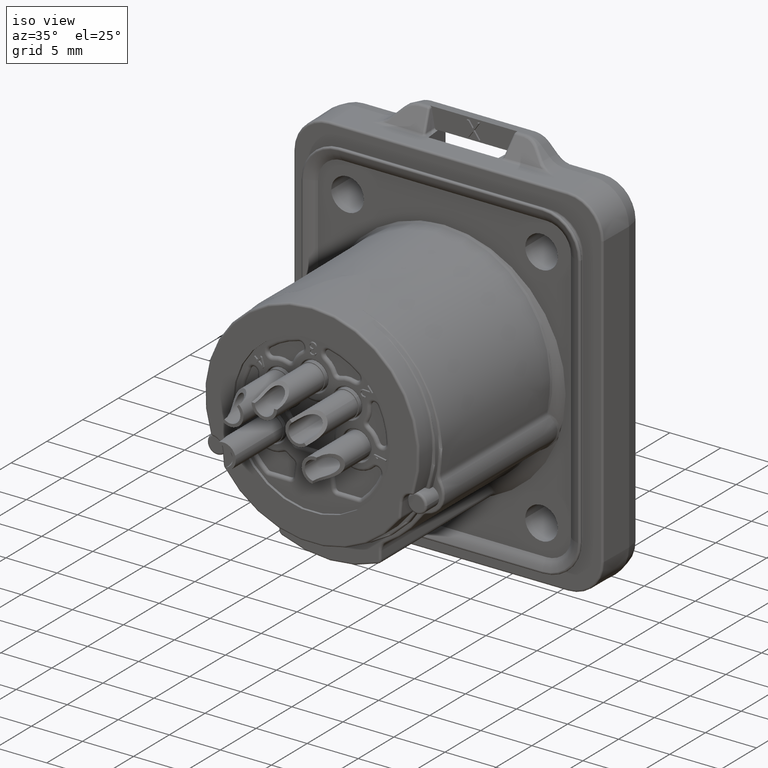
[diagram: clean part render]
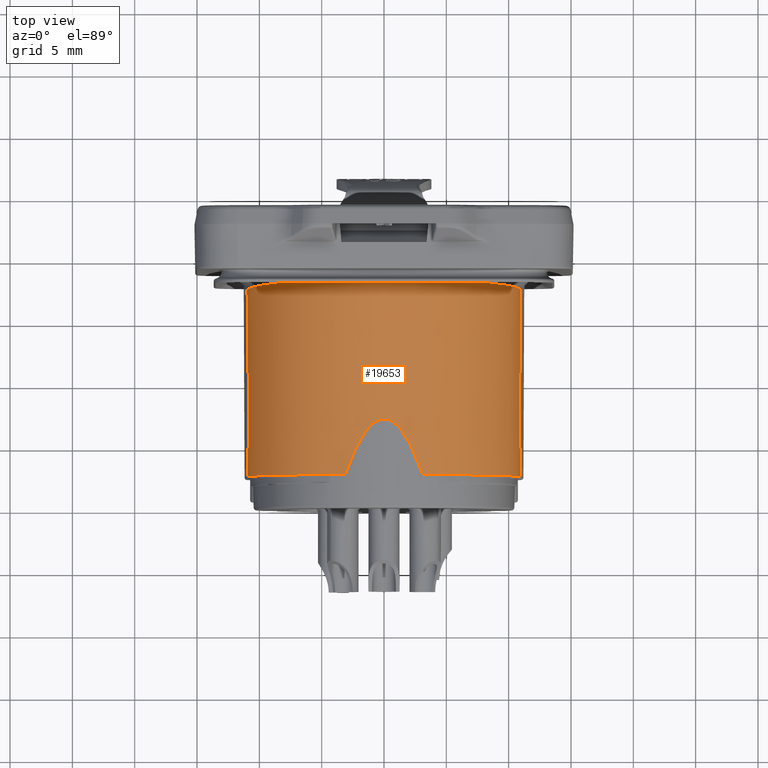
[diagram: tour spotlight — one face highlighted and labeled with its STEP entity id]
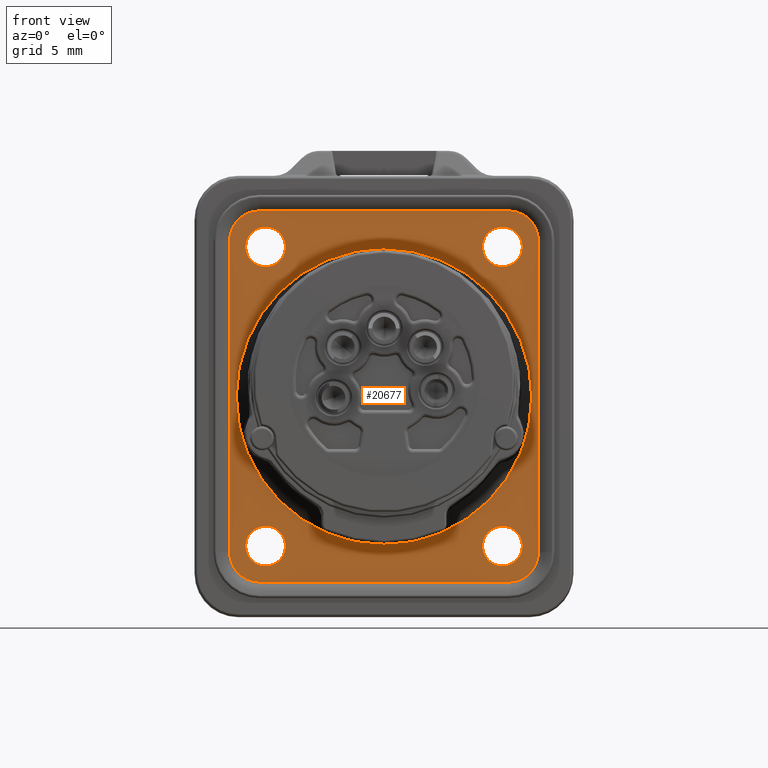
[diagram: tour spotlight — one face highlighted and labeled with its STEP entity id]
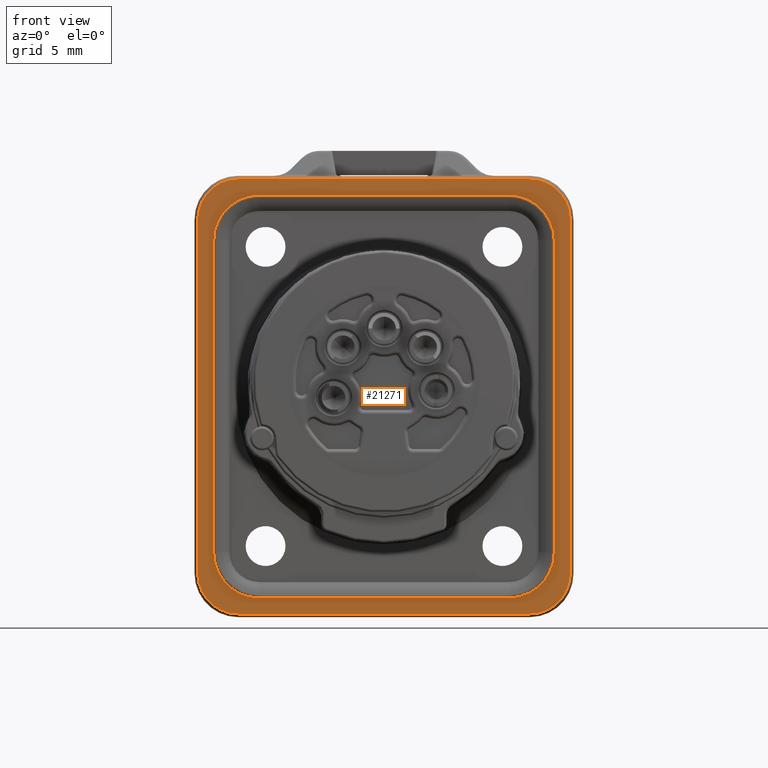
[diagram: tour spotlight — one face highlighted and labeled with its STEP entity id]
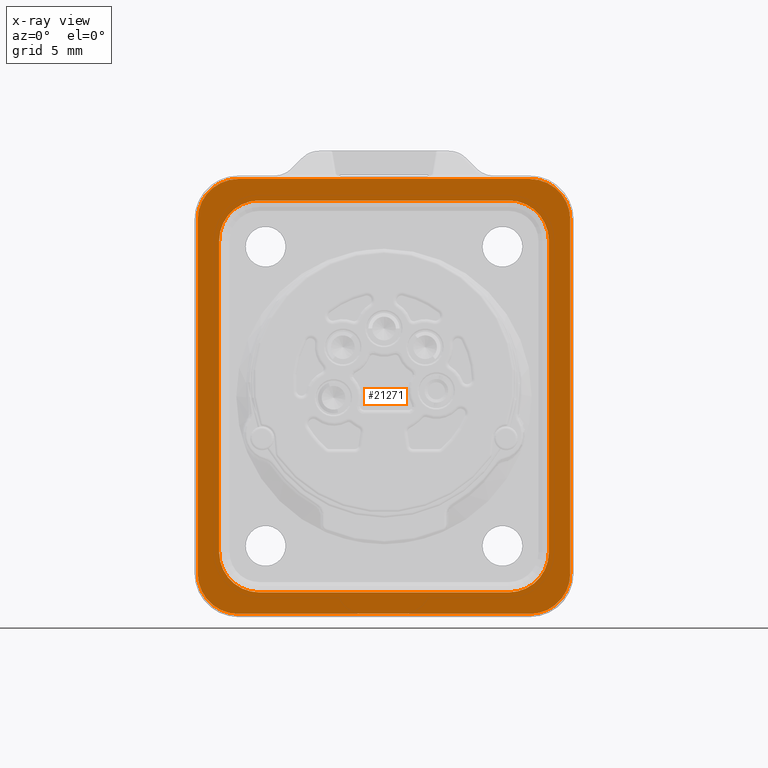
[diagram: x-ray of the same camera — body ghosted, this tour face saturated]
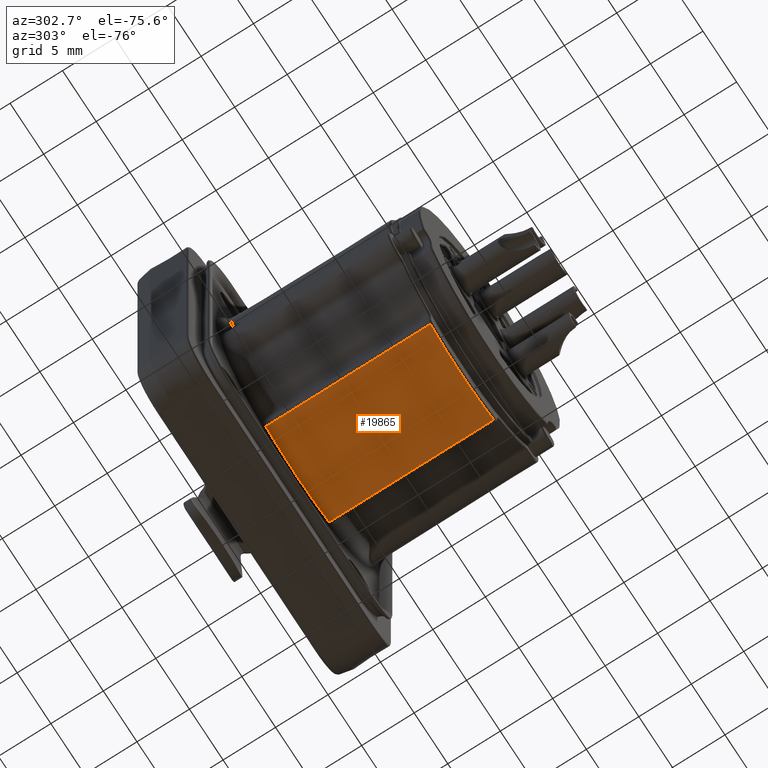
[diagram: tour spotlight — one face highlighted and labeled with its STEP entity id]
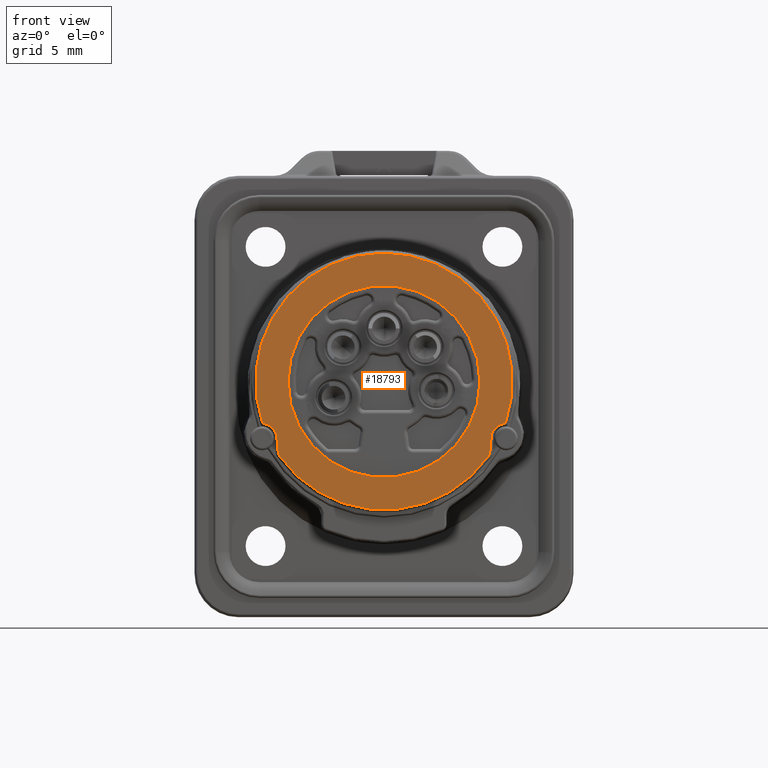
[diagram: tour spotlight — one face highlighted and labeled with its STEP entity id]
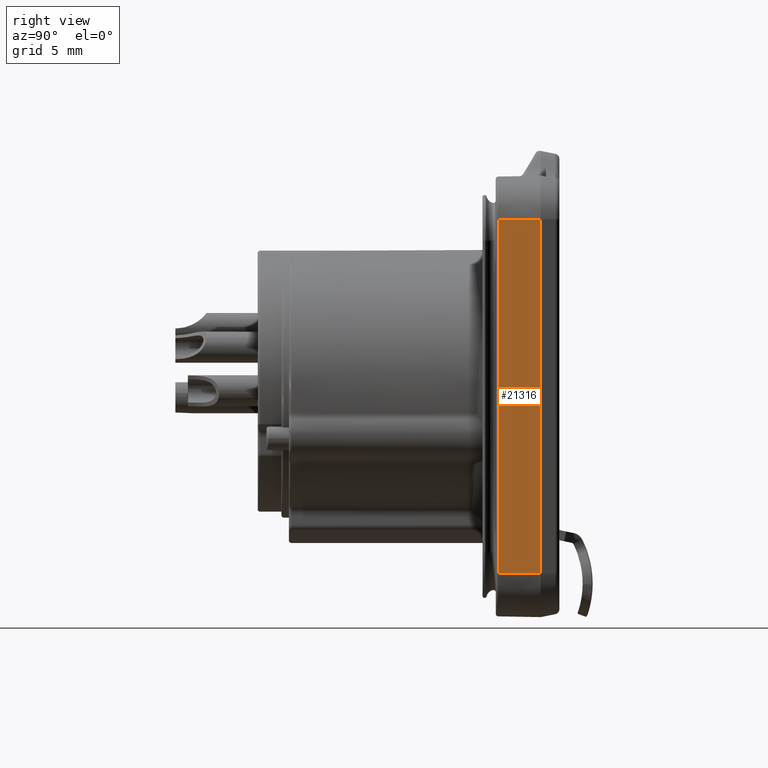
[diagram: tour spotlight — one face highlighted and labeled with its STEP entity id]
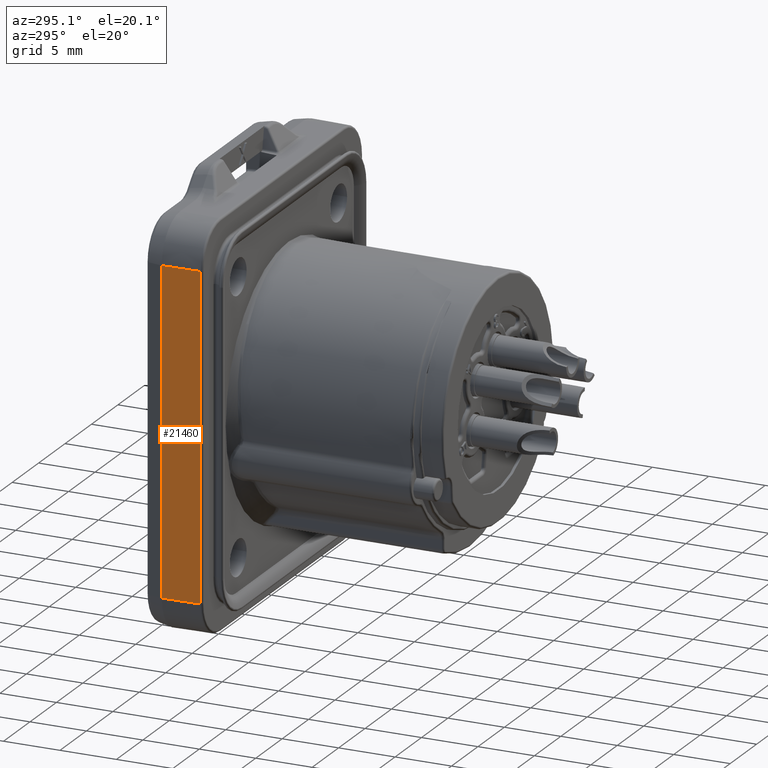
[diagram: tour spotlight — one face highlighted and labeled with its STEP entity id]
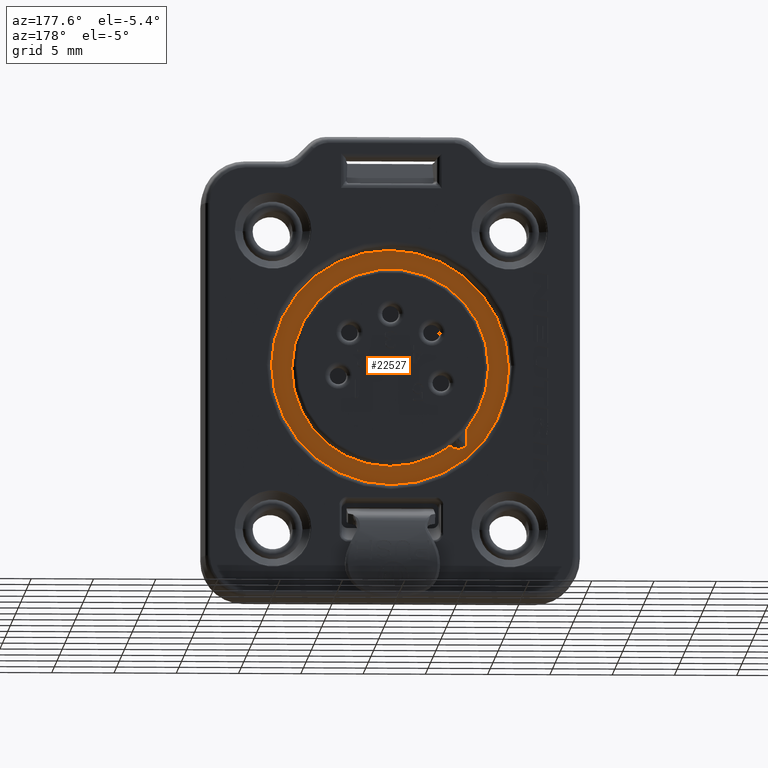
[diagram: tour spotlight — one face highlighted and labeled with its STEP entity id]
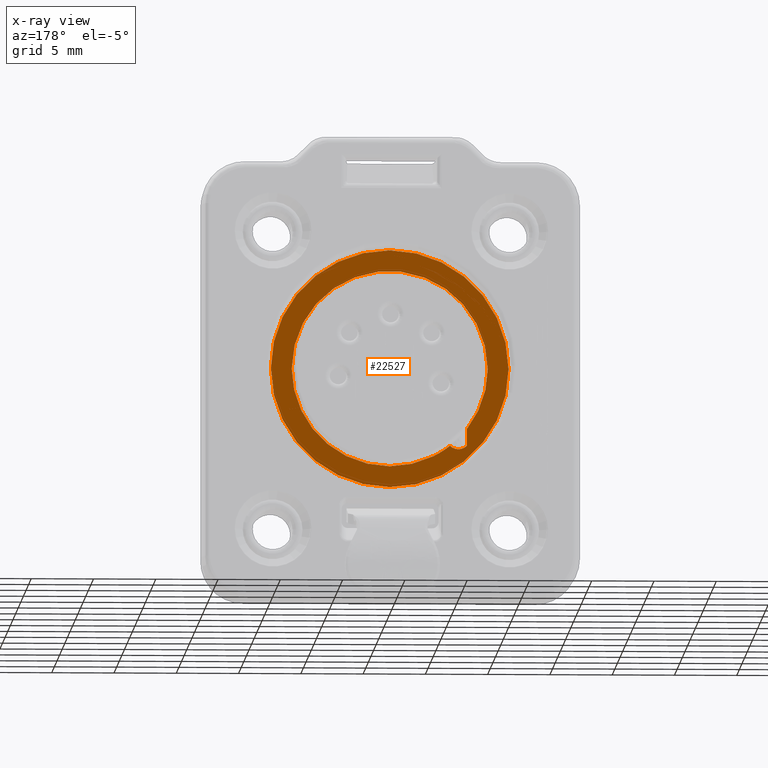
[diagram: x-ray of the same camera — body ghosted, this tour face saturated]
A machine part: a face-by-face anatomy tour. The part has 1106 B-rep faces; the first image is the clean iso view, then the 8 largest visible faces are spotlighted one at a time (largest first), each with its STEP entity span.

Face 1 — top view, entity #19653. In plain terms, the highlighted conical surface has half-angle 0.25 deg.
Definition (entity closure, byte-faithful):
#1408=CARTESIAN_POINT('',(3.109322632789E0,-1.740087266186E1,1.122906340419E1));
#1409=CARTESIAN_POINT('',(3.006096462832E0,-1.709883813768E1,1.126106673826E1));
#1410=CARTESIAN_POINT('',(2.800689039590E0,-1.653114064896E1,1.132123016023E1));
#1411=CARTESIAN_POINT('',(2.500639886435E0,-1.579361036088E1,1.139941413073E1));
#1412=CARTESIAN_POINT('',(2.204572967325E0,-1.515215112444E1,1.146742953416E1));
#1413=CARTESIAN_POINT('',(1.911065376186E0,-1.459934495241E1,1.152605566065E1));
#1414=CARTESIAN_POINT('',(1.617456022453E0,-1.412750851117E1,1.157610147336E1));
#1415=CARTESIAN_POINT('',(1.320655792113E0,-1.373182940253E1,1.161807272266E1));
#1416=CARTESIAN_POINT('',(1.018662896144E0,-1.341239828671E1,1.165195582508E1));
#1417=CARTESIAN_POINT('',(7.136365906669E-1,-1.317418386734E1,
1.167722035574E1));
#1418=CARTESIAN_POINT('',(4.106199448235E-1,-1.302203316036E1,
1.169334962407E1));
#1419=CARTESIAN_POINT('',(1.276350790094E-1,-1.295539792809E1,
1.170040162217E1));
#1420=CARTESIAN_POINT('',(-1.412635132207E-1,-1.295693667451E1,
1.170021640914E1));
#1421=CARTESIAN_POINT('',(-4.221121034239E-1,-1.302592283472E1,
1.169286902652E1));
#1422=CARTESIAN_POINT('',(-7.224711783238E-1,-1.317901618424E1,
1.167659071311E1));
#1423=CARTESIAN_POINT('',(-1.025301051652E0,-1.341712594172E1,
1.165128798522E1));
#1424=CARTESIAN_POINT('',(-1.325569157353E0,-1.373581972207E1,
1.161743430677E1));
#1425=CARTESIAN_POINT('',(-1.621067722593E0,-1.413044392848E1,
1.157552698258E1));
#1426=CARTESIAN_POINT('',(-1.913702002547E0,-1.460109104019E1,
1.152555981919E1));
#1427=CARTESIAN_POINT('',(-2.206603985481E0,-1.515293074480E1,
1.146698863984E1));
#1428=CARTESIAN_POINT('',(-2.502301107891E0,-1.579364566817E1,
1.139900414150E1));
#1429=CARTESIAN_POINT('',(-2.802211810146E0,-1.653082581499E1,
1.132080857244E1));
#1430=CARTESIAN_POINT('',(-3.007673940459E0,-1.709867296844E1,
1.126059591184E1));
#1431=CARTESIAN_POINT('',(-3.110951358520E0,-1.740087266186E1,
1.122855830341E1));
#2086=CARTESIAN_POINT('',(3.654105111532E-5,-1.740087266186E1,
7.499999991098E-1));
#2087=DIRECTION('',(0.E0,-1.E0,0.E0));
#2088=DIRECTION('',(-2.846122368719E-1,0.E0,9.586427252229E-1));
#2089=AXIS2_PLACEMENT_3D('',#2086,#2087,#2088);
#2091=CARTESIAN_POINT('',(-1.075103653724E1,-1.740087266013E1,
-1.223032568576E0));
#2092=CARTESIAN_POINT('',(-1.075852498013E1,-1.576093955951E1,
-1.221870082708E0));
#2093=CARTESIAN_POINT('',(-1.077351725326E1,-1.247705615352E1,
-1.219548907446E0));
#2094=CARTESIAN_POINT('',(-1.079605187832E1,-7.539182164622E0,
-1.216078374955E0));
#2095=CARTESIAN_POINT('',(-1.081110584149E1,-4.239228096859E0,
-1.213772057347E0));
#2096=CARTESIAN_POINT('',(-1.081864055079E1,-2.587242001913E0,
-1.212620719677E0));
#2098=CARTESIAN_POINT('',(-1.081864055079E1,-2.587242001913E0,
-1.212620719677E0));
#2099=CARTESIAN_POINT('',(-1.089038476395E1,-2.559926021081E0,
-8.177863808075E-1));
#2100=CARTESIAN_POINT('',(-1.099062148467E1,-2.504950720716E0,
-2.023882199320E-2));
#2101=CARTESIAN_POINT('',(-1.100932282858E1,-2.422442227715E0,
1.185602656117E0));
#2102=CARTESIAN_POINT('',(-1.089613245067E1,-2.340888834860E0,
2.386205511895E0));
#2103=CARTESIAN_POINT('',(-1.065235595220E1,-2.261221646345E0,
3.567387926011E0));
#2104=CARTESIAN_POINT('',(-1.028111928424E1,-2.184392109503E0,
4.714340776742E0));
#2105=CARTESIAN_POINT('',(-9.786875561118E0,-2.111226708067E0,
5.813738568103E0));
#2106=CARTESIAN_POINT('',(-9.175632223480E0,-2.042528991431E0,
6.852333641271E0));
#2107=CARTESIAN_POINT('',(-8.454883047499E0,-1.979039979106E0,
7.817637349806E0));
#2108=CARTESIAN_POINT('',(-7.633280374254E0,-1.921419524428E0,
8.698266538683E0));
#2109=CARTESIAN_POINT('',(-6.720660678992E0,-1.870256859022E0,
9.483812485717E0));
#2110=CARTESIAN_POINT('',(-5.727824407887E0,-1.826065501769E0,
1.016504655306E1));
#2111=CARTESIAN_POINT('',(-4.666567921351E0,-1.789290950278E0,
1.073387862114E1));
#2112=CARTESIAN_POINT('',(-3.549590981871E0,-1.760302677787E0,
1.118349994882E1));
#2113=CARTESIAN_POINT('',(-2.390254936764E0,-1.739388740797E0,
1.150854564076E1));
#2114=CARTESIAN_POINT('',(-1.202314563591E0,-1.726754914344E0,
1.170515420055E1));
#2115=CARTESIAN_POINT('',(-4.007736820448E-1,-1.723936417798E0,
1.174902128492E1));
#2116=CARTESIAN_POINT('',(9.701907820140E-7,-1.723935039799E0,
1.174902289191E1));
#2118=CARTESIAN_POINT('',(9.701907820140E-7,-1.723935039799E0,
1.174902289191E1));
#2119=CARTESIAN_POINT('',(4.002604286197E-1,-1.723934191106E0,
1.174902058526E1));
#2120=CARTESIAN_POINT('',(1.200850999885E0,-1.726741416435E0,1.170527630769E1));
#2121=CARTESIAN_POINT('',(2.387640603025E0,-1.739337274127E0,1.150910089618E1));
#2122=CARTESIAN_POINT('',(3.546167167080E0,-1.760206842330E0,1.118466283407E1));
#2123=CARTESIAN_POINT('',(4.662793721376E0,-1.789146657214E0,1.073565271908E1));
#2124=CARTESIAN_POINT('',(5.723733121531E0,-1.825866481093E0,1.016756013828E1));
#2125=CARTESIAN_POINT('',(6.716730246675E0,-1.870014128618E0,9.486892946784E0));
#2126=CARTESIAN_POINT('',(7.629754803847E0,-1.921145325370E0,8.701727018033E0));
#2127=CARTESIAN_POINT('',(8.451821511490E0,-1.978739921888E0,7.821395170458E0));
#2128=CARTESIAN_POINT('',(9.173080282768E0,-2.042208631056E0,6.856289078993E0));
#2129=CARTESIAN_POINT('',(9.784821817487E0,-2.110889444672E0,5.817862888962E0));
#2130=CARTESIAN_POINT('',(1.027966465477E1,-2.184056659980E0,4.718363402390E0));
#2131=CARTESIAN_POINT('',(1.065153459424E1,-2.260918265145E0,3.570866987515E0));
#2132=CARTESIAN_POINT('',(1.089579668836E1,-2.340618222972E0,2.389133859415E0));
#2133=CARTESIAN_POINT('',(1.100936887253E1,-2.422241580255E0,1.187468468374E0));
#2134=CARTESIAN_POINT('',(1.099078348864E1,-2.504839954351E0,
-1.970347763958E-2));
#2135=CARTESIAN_POINT('',(1.089040939076E1,-2.559887642338E0,
-8.182934938219E-1));
#2136=CARTESIAN_POINT('',(1.081852233832E1,-2.587242001882E0,
-1.213674912314E0));
#2138=CARTESIAN_POINT('',(1.075091731038E1,-1.740087266010E1,
-1.224080174444E0));
#2139=CARTESIAN_POINT('',(1.075840586651E1,-1.576093955947E1,
-1.222918418277E0));
#2140=CARTESIAN_POINT('',(1.077339836590E1,-1.247705615347E1,
-1.220598703086E0));
#2141=CARTESIAN_POINT('',(1.079593332894E1,-7.539182164555E0,
-1.217130366932E0));
#2142=CARTESIAN_POINT('',(1.081098751686E1,-4.239228096795E0,
-1.214825515774E0));
#2143=CARTESIAN_POINT('',(1.081852233832E1,-2.587242001882E0,
-1.213674912314E0));
#2145=CARTESIAN_POINT('',(3.654105111532E-5,-1.740087266186E1,
7.499999991098E-1));
#2146=DIRECTION('',(0.E0,-1.E0,0.E0));
#2147=DIRECTION('',(9.835564530870E-1,0.E0,-1.806009512460E-1));
#2148=AXIS2_PLACEMENT_3D('',#2145,#2146,#2147);
#2425=CARTESIAN_POINT('',(1.075091731038E1,-1.740087266010E1,
-1.224080174444E0));
#2456=CARTESIAN_POINT('',(-1.075103653724E1,-1.740087266013E1,
-1.223032568576E0));
#2471=CARTESIAN_POINT('',(-1.081864055079E1,-2.587242001913E0,
-1.212620719677E0));
#17400=CARTESIAN_POINT('',(9.701469295163E-7,-1.723935039799E0,
1.174902289191E1));
#17402=VERTEX_POINT('',#17400);
#17412=VERTEX_POINT('',#2471);
#17415=VERTEX_POINT('',#2136);
#17436=VERTEX_POINT('',#2425);
#17441=VERTEX_POINT('',#2456);
#17547=VERTEX_POINT('',#1408);
#17548=VERTEX_POINT('',#1431);
#19634=CARTESIAN_POINT('',(3.654105111676E-5,-9.562403850828E0,
7.499999991098E-1));
#19635=DIRECTION('',(0.E0,1.E0,0.E0));
#19636=DIRECTION('',(1.E0,0.E0,0.E0));
#19637=AXIS2_PLACEMENT_3D('',#19634,#19635,#19636);
#19638=CONICAL_SURFACE('',#19637,1.096482090354E1,2.5E-1);
#19639=ORIENTED_EDGE('',*,*,#18970,.T.);
#19641=ORIENTED_EDGE('',*,*,#19640,.T.);
#19643=ORIENTED_EDGE('',*,*,#19642,.T.);
#19645=ORIENTED_EDGE('',*,*,#19644,.T.);
#19647=ORIENTED_EDGE('',*,*,#19646,.T.);
#19649=ORIENTED_EDGE('',*,*,#19648,.F.);
#19650=ORIENTED_EDGE('',*,*,#19626,.T.);
#19651=EDGE_LOOP('',(#19639,#19641,#19643,#19645,#19647,#19649,#19650));
#19652=FACE_OUTER_BOUND('',#19651,.F.);
#19653=ADVANCED_FACE('',(#19652),#19638,.T.);
#1432=B_SPLINE_CURVE_WITH_KNOTS('',3,(#1408,#1409,#1410,#1411,#1412,#1413,#1414,
#1415,#1416,#1417,#1418,#1419,#1420,#1421,#1422,#1423,#1424,#1425,#1426,#1427,
#1428,#1429,#1430,#1431),.UNSPECIFIED.,.F.,.F.,(4,1,1,1,1,1,1,1,1,1,1,1,1,1,1,1,
1,1,1,1,1,4),(0.E0,4.761904761905E-2,9.523809523810E-2,1.428571428571E-1,
1.904761904762E-1,2.380952380952E-1,2.857142857143E-1,3.333333333333E-1,
3.809523809524E-1,4.285714285714E-1,4.761904761905E-1,5.238095238095E-1,
5.714285714286E-1,6.190476190476E-1,6.666666666667E-1,7.142857142857E-1,
7.619047619048E-1,8.095238095238E-1,8.571428571429E-1,9.047619047619E-1,
9.523809523810E-1,1.E0),.UNSPECIFIED.);
#2090=CIRCLE('',#2089,1.093061891422E1);
#2097=B_SPLINE_CURVE_WITH_KNOTS('',3,(#2091,#2092,#2093,#2094,#2095,#2096),
.UNSPECIFIED.,.F.,.F.,(4,1,1,4),(0.E0,3.333333333333E-1,6.666666666667E-1,1.E0),
.UNSPECIFIED.);
#2117=B_SPLINE_CURVE_WITH_KNOTS('',3,(#2098,#2099,#2100,#2101,#2102,#2103,#2104,
#2105,#2106,#2107,#2108,#2109,#2110,#2111,#2112,#2113,#2114,#2115,#2116),
.UNSPECIFIED.,.F.,.F.,(4,1,1,1,1,1,1,1,1,1,1,1,1,1,1,1,4),(0.E0,6.25E-2,1.25E-1,
1.875E-1,2.5E-1,3.125E-1,3.75E-1,4.375E-1,5.E-1,5.625E-1,6.25E-1,6.875E-1,
7.5E-1,8.125E-1,8.75E-1,9.375E-1,1.E0),.UNSPECIFIED.);
#2137=B_SPLINE_CURVE_WITH_KNOTS('',3,(#2118,#2119,#2120,#2121,#2122,#2123,#2124,
#2125,#2126,#2127,#2128,#2129,#2130,#2131,#2132,#2133,#2134,#2135,#2136),
.UNSPECIFIED.,.F.,.F.,(4,1,1,1,1,1,1,1,1,1,1,1,1,1,1,1,4),(0.E0,6.25E-2,1.25E-1,
1.875E-1,2.5E-1,3.125E-1,3.75E-1,4.375E-1,5.E-1,5.625E-1,6.25E-1,6.875E-1,
7.5E-1,8.125E-1,8.75E-1,9.375E-1,1.E0),.UNSPECIFIED.);
#2144=B_SPLINE_CURVE_WITH_KNOTS('',3,(#2138,#2139,#2140,#2141,#2142,#2143),
.UNSPECIFIED.,.F.,.F.,(4,1,1,4),(0.E0,3.333333333333E-1,6.666666666667E-1,1.E0),
.UNSPECIFIED.);
#2149=CIRCLE('',#2148,1.093061891422E1);
#18970=EDGE_CURVE('',#17547,#17548,#1432,.T.);
#19626=EDGE_CURVE('',#17436,#17547,#2149,.T.);
#19640=EDGE_CURVE('',#17548,#17441,#2090,.T.);
#19642=EDGE_CURVE('',#17441,#17412,#2097,.T.);
#19644=EDGE_CURVE('',#17412,#17402,#2117,.T.);
#19646=EDGE_CURVE('',#17402,#17415,#2137,.T.);
#19648=EDGE_CURVE('',#17436,#17415,#2144,.T.);

Face 2 — front view, entity #20677. In plain terms, the highlighted planar face has unit normal (0, 1, 0).
Definition (entity closure, byte-faithful):
#2656=CARTESIAN_POINT('',(9.5E0,-1.5E0,1.2E1));
#2657=DIRECTION('',(0.E0,1.E0,0.E0));
#2658=DIRECTION('',(-1.E0,0.E0,0.E0));
#2659=AXIS2_PLACEMENT_3D('',#2656,#2657,#2658);
#2661=CARTESIAN_POINT('',(-9.5E0,-1.5E0,1.2E1));
#2662=DIRECTION('',(0.E0,1.E0,0.E0));
#2663=DIRECTION('',(-1.E0,0.E0,0.E0));
#2664=AXIS2_PLACEMENT_3D('',#2661,#2662,#2663);
#2666=CARTESIAN_POINT('',(-9.5E0,-1.5E0,-1.2E1));
#2667=DIRECTION('',(0.E0,1.E0,0.E0));
#2668=DIRECTION('',(1.E0,0.E0,0.E0));
#2669=AXIS2_PLACEMENT_3D('',#2666,#2667,#2668);
#2671=CARTESIAN_POINT('',(9.5E0,-1.5E0,-1.2E1));
#2672=DIRECTION('',(0.E0,1.E0,0.E0));
#2673=DIRECTION('',(1.E0,0.E0,0.E0));
#2674=AXIS2_PLACEMENT_3D('',#2671,#2672,#2673);
#2676=CARTESIAN_POINT('',(0.E0,-1.5E0,0.E0));
#2677=DIRECTION('',(0.E0,-1.E0,0.E0));
#2678=DIRECTION('',(0.E0,0.E0,-1.E0));
#2679=AXIS2_PLACEMENT_3D('',#2676,#2677,#2678);
#2681=CARTESIAN_POINT('',(0.E0,-1.5E0,0.E0));
#2682=DIRECTION('',(0.E0,-1.E0,0.E0));
#2683=DIRECTION('',(0.E0,0.E0,1.E0));
#2684=AXIS2_PLACEMENT_3D('',#2681,#2682,#2683);
#2686=DIRECTION('',(0.E0,0.E0,1.E0));
#2687=VECTOR('',#2686,2.5E1);
#2688=CARTESIAN_POINT('',(1.238913613741E1,-1.5E0,-1.25E1));
#2689=LINE('',#2688,#2687);
#2690=CARTESIAN_POINT('',(1.E1,-1.5E0,1.25E1));
#2691=DIRECTION('',(0.E0,-1.E0,0.E0));
#2692=DIRECTION('',(1.E0,0.E0,0.E0));
#2693=AXIS2_PLACEMENT_3D('',#2690,#2691,#2692);
#2700=DIRECTION('',(-1.E0,0.E0,0.E0));
#2701=VECTOR('',#2700,2.E1);
#2702=CARTESIAN_POINT('',(1.E1,-1.5E0,1.488913613741E1));
#2703=LINE('',#2702,#2701);
#2709=CARTESIAN_POINT('',(-1.E1,-1.5E0,1.25E1));
#2710=DIRECTION('',(0.E0,-1.E0,0.E0));
#2711=DIRECTION('',(0.E0,0.E0,1.E0));
#2712=AXIS2_PLACEMENT_3D('',#2709,#2710,#2711);
#2719=DIRECTION('',(0.E0,0.E0,-1.E0));
#2720=VECTOR('',#2719,2.5E1);
#2721=CARTESIAN_POINT('',(-1.238913613741E1,-1.5E0,1.25E1));
#2722=LINE('',#2721,#2720);
#2728=CARTESIAN_POINT('',(-1.E1,-1.5E0,-1.25E1));
#2729=DIRECTION('',(0.E0,-1.E0,0.E0));
#2730=DIRECTION('',(-1.E0,0.E0,0.E0));
#2731=AXIS2_PLACEMENT_3D('',#2728,#2729,#2730);
#2738=DIRECTION('',(1.E0,0.E0,0.E0));
#2739=VECTOR('',#2738,2.E1);
#2740=CARTESIAN_POINT('',(-1.E1,-1.5E0,-1.488913613741E1));
#2741=LINE('',#2740,#2739);
#2747=CARTESIAN_POINT('',(1.E1,-1.5E0,-1.25E1));
#2748=DIRECTION('',(0.E0,-1.E0,0.E0));
#2749=DIRECTION('',(1.487028563661E-14,0.E0,-1.E0));
#2750=AXIS2_PLACEMENT_3D('',#2747,#2748,#2749);
#4012=CARTESIAN_POINT('',(9.5E0,-1.5E0,1.2E1));
#4013=DIRECTION('',(0.E0,1.E0,0.E0));
#4014=DIRECTION('',(1.E0,0.E0,0.E0));
#4015=AXIS2_PLACEMENT_3D('',#4012,#4013,#4014);
#4101=CARTESIAN_POINT('',(-9.5E0,-1.5E0,1.2E1));
#4102=DIRECTION('',(0.E0,1.E0,0.E0));
#4103=DIRECTION('',(1.E0,0.E0,0.E0));
#4104=AXIS2_PLACEMENT_3D('',#4101,#4102,#4103);
#4177=CARTESIAN_POINT('',(9.5E0,-1.5E0,-1.2E1));
#4178=DIRECTION('',(0.E0,1.E0,0.E0));
#4179=DIRECTION('',(-1.E0,0.E0,0.E0));
#4180=AXIS2_PLACEMENT_3D('',#4177,#4178,#4179);
#4266=CARTESIAN_POINT('',(-9.5E0,-1.5E0,-1.2E1));
#4267=DIRECTION('',(0.E0,1.E0,0.E0));
#4268=DIRECTION('',(-1.E0,0.E0,0.E0));
#4269=AXIS2_PLACEMENT_3D('',#4266,#4267,#4268);
#14959=CARTESIAN_POINT('',(-7.9E0,-1.5E0,-1.2E1));
#14960=CARTESIAN_POINT('',(-1.11E1,-1.5E0,-1.2E1));
#14961=VERTEX_POINT('',#14959);
#14962=VERTEX_POINT('',#14960);
#14963=CARTESIAN_POINT('',(1.11E1,-1.5E0,-1.2E1));
#14964=CARTESIAN_POINT('',(7.9E0,-1.5E0,-1.2E1));
#14965=VERTEX_POINT('',#14963);
#14966=VERTEX_POINT('',#14964);
#14967=CARTESIAN_POINT('',(-1.11E1,-1.5E0,1.2E1));
#14968=CARTESIAN_POINT('',(-7.9E0,-1.5E0,1.2E1));
#14969=VERTEX_POINT('',#14967);
#14970=VERTEX_POINT('',#14968);
#14971=CARTESIAN_POINT('',(7.9E0,-1.5E0,1.2E1));
#14972=CARTESIAN_POINT('',(1.11E1,-1.5E0,1.2E1));
#14973=VERTEX_POINT('',#14971);
#14974=VERTEX_POINT('',#14972);
#17338=CARTESIAN_POINT('',(1.238913613741E1,-1.5E0,-1.25E1));
#17339=CARTESIAN_POINT('',(1.238913613741E1,-1.5E0,1.25E1));
#17340=VERTEX_POINT('',#17338);
#17341=VERTEX_POINT('',#17339);
#17350=CARTESIAN_POINT('',(1.E1,-1.5E0,1.488913613741E1));
#17351=VERTEX_POINT('',#17350);
#17356=CARTESIAN_POINT('',(-1.E1,-1.5E0,1.488913613741E1));
#17357=VERTEX_POINT('',#17356);
#17362=CARTESIAN_POINT('',(-1.238913613741E1,-1.5E0,1.25E1));
#17363=VERTEX_POINT('',#17362);
#17368=CARTESIAN_POINT('',(-1.238913613741E1,-1.5E0,-1.25E1));
#17369=VERTEX_POINT('',#17368);
#17374=CARTESIAN_POINT('',(-1.E1,-1.5E0,-1.488913613741E1));
#17375=VERTEX_POINT('',#17374);
#17380=CARTESIAN_POINT('',(1.E1,-1.5E0,-1.488913613741E1));
#17381=VERTEX_POINT('',#17380);
#17523=CARTESIAN_POINT('',(0.E0,-1.5E0,-1.185E1));
#17524=CARTESIAN_POINT('',(0.E0,-1.5E0,1.185E1));
#17525=VERTEX_POINT('',#17523);
#17526=VERTEX_POINT('',#17524);
#20625=CARTESIAN_POINT('',(0.E0,-1.5E0,0.E0));
#20626=DIRECTION('',(0.E0,1.E0,0.E0));
#20627=DIRECTION('',(1.E0,0.E0,0.E0));
#20628=AXIS2_PLACEMENT_3D('',#20625,#20626,#20627);
#20629=PLANE('',#20628);
#20631=ORIENTED_EDGE('',*,*,#20630,.F.);
#20633=ORIENTED_EDGE('',*,*,#20632,.F.);
#20635=ORIENTED_EDGE('',*,*,#20634,.F.);
#20637=ORIENTED_EDGE('',*,*,#20636,.F.);
#20639=ORIENTED_EDGE('',*,*,#20638,.F.);
#20641=ORIENTED_EDGE('',*,*,#20640,.F.);
#20643=ORIENTED_EDGE('',*,*,#20642,.F.);
#20645=ORIENTED_EDGE('',*,*,#20644,.F.);
#20646=EDGE_LOOP('',(#20631,#20633,#20635,#20637,#20639,#20641,#20643,#20645));
#20647=FACE_OUTER_BOUND('',#20646,.F.);
#20649=ORIENTED_EDGE('',*,*,#20648,.F.);
#20651=ORIENTED_EDGE('',*,*,#20650,.F.);
#20652=EDGE_LOOP('',(#20649,#20651));
#20653=FACE_BOUND('',#20652,.F.);
#20655=ORIENTED_EDGE('',*,*,#20654,.F.);
#20657=ORIENTED_EDGE('',*,*,#20656,.F.);
#20658=EDGE_LOOP('',(#20655,#20657));
#20659=FACE_BOUND('',#20658,.F.);
#20661=ORIENTED_EDGE('',*,*,#20660,.F.);
#20663=ORIENTED_EDGE('',*,*,#20662,.F.);
#20664=EDGE_LOOP('',(#20661,#20663));
#20665=FACE_BOUND('',#20664,.F.);
#20667=ORIENTED_EDGE('',*,*,#20666,.F.);
#20669=ORIENTED_EDGE('',*,*,#20668,.F.);
#20670=EDGE_LOOP('',(#20667,#20669));
#20671=FACE_BOUND('',#20670,.F.);
#20672=ORIENTED_EDGE('',*,*,#20601,.T.);
#20674=ORIENTED_EDGE('',*,*,#20673,.T.);
#20675=EDGE_LOOP('',(#20672,#20674));
#20676=FACE_BOUND('',#20675,.F.);
#20677=ADVANCED_FACE('',(#20647,#20653,#20659,#20665,#20671,#20676),#20629,.F.);
#2660=CIRCLE('',#2659,1.6E0);
#2665=CIRCLE('',#2664,1.6E0);
#2670=CIRCLE('',#2669,1.6E0);
#2675=CIRCLE('',#2674,1.6E0);
#2680=CIRCLE('',#2679,1.185E1);
#2685=CIRCLE('',#2684,1.185E1);
#2694=CIRCLE('',#2693,2.389136137407E0);
#2713=CIRCLE('',#2712,2.389136137407E0);
#2732=CIRCLE('',#2731,2.389136137407E0);
#2751=CIRCLE('',#2750,2.389136137407E0);
#4016=CIRCLE('',#4015,1.6E0);
#4105=CIRCLE('',#4104,1.6E0);
#4181=CIRCLE('',#4180,1.6E0);
#4270=CIRCLE('',#4269,1.6E0);
#20601=EDGE_CURVE('',#17525,#17526,#2680,.T.);
#20630=EDGE_CURVE('',#17340,#17341,#2689,.T.);
#20632=EDGE_CURVE('',#17381,#17340,#2751,.T.);
#20634=EDGE_CURVE('',#17375,#17381,#2741,.T.);
#20636=EDGE_CURVE('',#17369,#17375,#2732,.T.);
#20638=EDGE_CURVE('',#17363,#17369,#2722,.T.);
#20640=EDGE_CURVE('',#17357,#17363,#2713,.T.);
#20642=EDGE_CURVE('',#17351,#17357,#2703,.T.);
#20644=EDGE_CURVE('',#17341,#17351,#2694,.T.);
#20648=EDGE_CURVE('',#14974,#14973,#4016,.T.);
#20650=EDGE_CURVE('',#14973,#14974,#2660,.T.);
#20654=EDGE_CURVE('',#14970,#14969,#4105,.T.);
#20656=EDGE_CURVE('',#14969,#14970,#2665,.T.);
#20660=EDGE_CURVE('',#14962,#14961,#4270,.T.);
#20662=EDGE_CURVE('',#14961,#14962,#2670,.T.);
#20666=EDGE_CURVE('',#14966,#14965,#4181,.T.);
#20668=EDGE_CURVE('',#14965,#14966,#2675,.T.);
#20673=EDGE_CURVE('',#17526,#17525,#2685,.T.);

Face 3 — front view, entity #21271. An x-ray twin of the same camera follows (body ghosted, this face saturated) — the face is partly hidden behind the body. In plain terms, the highlighted planar face has unit normal (0, -1, 0).
Definition (entity closure, byte-faithful):
#3058=CARTESIAN_POINT('',(1.17E1,-1.E0,-1.42E1));
#3059=DIRECTION('',(0.E0,1.E0,0.E0));
#3060=DIRECTION('',(1.E0,0.E0,0.E0));
#3061=AXIS2_PLACEMENT_3D('',#3058,#3059,#3060);
#3063=DIRECTION('',(-1.E0,0.E0,0.E0));
#3064=VECTOR('',#3063,2.34E1);
#3065=CARTESIAN_POINT('',(1.17E1,-1.E0,-1.744062231364E1));
#3066=LINE('',#3065,#3064);
#3067=CARTESIAN_POINT('',(-1.17E1,-1.E0,-1.42E1));
#3068=DIRECTION('',(0.E0,1.E0,0.E0));
#3069=DIRECTION('',(0.E0,0.E0,-1.E0));
#3070=AXIS2_PLACEMENT_3D('',#3067,#3068,#3069);
#3072=DIRECTION('',(0.E0,0.E0,1.E0));
#3073=VECTOR('',#3072,2.84E1);
#3074=CARTESIAN_POINT('',(-1.494062231364E1,-1.E0,-1.42E1));
#3075=LINE('',#3074,#3073);
#3076=CARTESIAN_POINT('',(-1.17E1,-1.E0,1.42E1));
#3077=DIRECTION('',(0.E0,1.E0,0.E0));
#3078=DIRECTION('',(-1.E0,0.E0,0.E0));
#3079=AXIS2_PLACEMENT_3D('',#3076,#3077,#3078);
#3081=DIRECTION('',(1.E0,0.E0,0.E0));
#3082=VECTOR('',#3081,2.34E1);
#3083=CARTESIAN_POINT('',(-1.17E1,-1.E0,1.744062231364E1));
#3084=LINE('',#3083,#3082);
#3085=CARTESIAN_POINT('',(1.17E1,-1.E0,1.42E1));
#3086=DIRECTION('',(0.E0,1.E0,0.E0));
#3087=DIRECTION('',(0.E0,0.E0,1.E0));
#3088=AXIS2_PLACEMENT_3D('',#3085,#3086,#3087);
#3090=DIRECTION('',(0.E0,0.E0,-1.E0));
#3091=VECTOR('',#3090,2.84E1);
#3092=CARTESIAN_POINT('',(1.494062231364E1,-1.E0,1.42E1));
#3093=LINE('',#3092,#3091);
#3094=DIRECTION('',(0.E0,0.E0,1.E0));
#3095=VECTOR('',#3094,2.5E1);
#3096=CARTESIAN_POINT('',(1.3223E1,-1.E0,-1.25E1));
#3097=LINE('',#3096,#3095);
#3098=CARTESIAN_POINT('',(1.E1,-1.E0,1.25E1));
#3099=DIRECTION('',(0.E0,-1.E0,0.E0));
#3100=DIRECTION('',(1.E0,0.E0,0.E0));
#3101=AXIS2_PLACEMENT_3D('',#3098,#3099,#3100);
#3103=DIRECTION('',(-1.E0,0.E0,0.E0));
#3104=VECTOR('',#3103,2.E1);
#3105=CARTESIAN_POINT('',(1.E1,-1.E0,1.5723E1));
#3106=LINE('',#3105,#3104);
#3107=CARTESIAN_POINT('',(-1.E1,-1.E0,1.25E1));
#3108=DIRECTION('',(0.E0,-1.E0,0.E0));
#3109=DIRECTION('',(0.E0,0.E0,1.E0));
#3110=AXIS2_PLACEMENT_3D('',#3107,#3108,#3109);
#3112=DIRECTION('',(0.E0,0.E0,-1.E0));
#3113=VECTOR('',#3112,2.5E1);
#3114=CARTESIAN_POINT('',(-1.3223E1,-1.E0,1.25E1));
#3115=LINE('',#3114,#3113);
#3116=CARTESIAN_POINT('',(-1.E1,-1.E0,-1.25E1));
#3117=DIRECTION('',(0.E0,-1.E0,0.E0));
#3118=DIRECTION('',(-1.E0,0.E0,0.E0));
#3119=AXIS2_PLACEMENT_3D('',#3116,#3117,#3118);
#3121=DIRECTION('',(1.E0,0.E0,0.E0));
#3122=VECTOR('',#3121,2.E1);
#3123=CARTESIAN_POINT('',(-1.E1,-1.E0,-1.5723E1));
#3124=LINE('',#3123,#3122);
#3125=CARTESIAN_POINT('',(1.E1,-1.E0,-1.25E1));
#3126=DIRECTION('',(0.E0,-1.E0,0.E0));
#3127=DIRECTION('',(0.E0,0.E0,-1.E0));
#3128=AXIS2_PLACEMENT_3D('',#3125,#3126,#3127);
#14917=CARTESIAN_POINT('',(1.494062231364E1,-1.E0,-1.42E1));
#14918=CARTESIAN_POINT('',(1.17E1,-1.E0,-1.744062231364E1));
#14919=VERTEX_POINT('',#14917);
#14920=VERTEX_POINT('',#14918);
#14923=CARTESIAN_POINT('',(-1.17E1,-1.E0,-1.744062231364E1));
#14924=VERTEX_POINT('',#14923);
#14927=CARTESIAN_POINT('',(-1.494062231364E1,-1.E0,-1.42E1));
#14928=VERTEX_POINT('',#14927);
#14931=CARTESIAN_POINT('',(-1.494062231364E1,-1.E0,1.42E1));
#14932=VERTEX_POINT('',#14931);
#14935=CARTESIAN_POINT('',(-1.17E1,-1.E0,1.744062231364E1));
#14936=VERTEX_POINT('',#14935);
#14939=CARTESIAN_POINT('',(1.17E1,-1.E0,1.744062231364E1));
#14940=VERTEX_POINT('',#14939);
#14943=CARTESIAN_POINT('',(1.494062231364E1,-1.E0,1.42E1));
#14944=VERTEX_POINT('',#14943);
#17280=CARTESIAN_POINT('',(1.3223E1,-1.E0,-1.25E1));
#17281=CARTESIAN_POINT('',(1.3223E1,-1.E0,1.25E1));
#17282=VERTEX_POINT('',#17280);
#17283=VERTEX_POINT('',#17281);
#17284=CARTESIAN_POINT('',(1.E1,-1.E0,1.5723E1));
#17285=VERTEX_POINT('',#17284);
#17286=CARTESIAN_POINT('',(-1.E1,-1.E0,1.5723E1));
#17287=VERTEX_POINT('',#17286);
#17288=CARTESIAN_POINT('',(-1.3223E1,-1.E0,1.25E1));
#17289=VERTEX_POINT('',#17288);
#17290=CARTESIAN_POINT('',(-1.3223E1,-1.E0,-1.25E1));
#17291=VERTEX_POINT('',#17290);
#17292=CARTESIAN_POINT('',(-1.E1,-1.E0,-1.5723E1));
#17293=VERTEX_POINT('',#17292);
#17294=CARTESIAN_POINT('',(1.E1,-1.E0,-1.5723E1));
#17295=VERTEX_POINT('',#17294);
#21238=CARTESIAN_POINT('',(0.E0,-1.E0,0.E0));
#21239=DIRECTION('',(0.E0,-1.E0,0.E0));
#21240=DIRECTION('',(-1.E0,0.E0,0.E0));
#21241=AXIS2_PLACEMENT_3D('',#21238,#21239,#21240);
#21242=PLANE('',#21241);
#21244=ORIENTED_EDGE('',*,*,#21243,.T.);
#21246=ORIENTED_EDGE('',*,*,#21245,.T.);
#21248=ORIENTED_EDGE('',*,*,#21247,.T.);
#21250=ORIENTED_EDGE('',*,*,#21249,.T.);
#21252=ORIENTED_EDGE('',*,*,#21251,.T.);
#21254=ORIENTED_EDGE('',*,*,#21253,.T.);
#21256=ORIENTED_EDGE('',*,*,#21255,.T.);
#21258=ORIENTED_EDGE('',*,*,#21257,.T.);
#21259=EDGE_LOOP('',(#21244,#21246,#21248,#21250,#21252,#21254,#21256,#21258));
#21260=FACE_OUTER_BOUND('',#21259,.F.);
#21261=ORIENTED_EDGE('',*,*,#21149,.T.);
#21262=ORIENTED_EDGE('',*,*,#21163,.T.);
#21263=ORIENTED_EDGE('',*,*,#21177,.T.);
#21264=ORIENTED_EDGE('',*,*,#21191,.T.);
#21265=ORIENTED_EDGE('',*,*,#21205,.T.);
#21266=ORIENTED_EDGE('',*,*,#21219,.T.);
#21267=ORIENTED_EDGE('',*,*,#21232,.T.);
#21268=ORIENTED_EDGE('',*,*,#21134,.T.);
#21269=EDGE_LOOP('',(#21261,#21262,#21263,#21264,#21265,#21266,#21267,#21268));
#21270=FACE_BOUND('',#21269,.F.);
#21271=ADVANCED_FACE('',(#21260,#21270),#21242,.T.);
#3062=CIRCLE('',#3061,3.240622313635E0);
#3071=CIRCLE('',#3070,3.240622313635E0);
#3080=CIRCLE('',#3079,3.240622313635E0);
#3089=CIRCLE('',#3088,3.240622313635E0);
#3102=CIRCLE('',#3101,3.223E0);
#3111=CIRCLE('',#3110,3.223E0);
#3120=CIRCLE('',#3119,3.223E0);
#3129=CIRCLE('',#3128,3.223E0);
#21134=EDGE_CURVE('',#17295,#17282,#3129,.T.);
#21149=EDGE_CURVE('',#17282,#17283,#3097,.T.);
#21163=EDGE_CURVE('',#17283,#17285,#3102,.T.);
#21177=EDGE_CURVE('',#17285,#17287,#3106,.T.);
#21191=EDGE_CURVE('',#17287,#17289,#3111,.T.);
#21205=EDGE_CURVE('',#17289,#17291,#3115,.T.);
#21219=EDGE_CURVE('',#17291,#17293,#3120,.T.);
#21232=EDGE_CURVE('',#17293,#17295,#3124,.T.);
#21243=EDGE_CURVE('',#14919,#14920,#3062,.T.);
#21245=EDGE_CURVE('',#14920,#14924,#3066,.T.);
#21247=EDGE_CURVE('',#14924,#14928,#3071,.T.);
#21249=EDGE_CURVE('',#14928,#14932,#3075,.T.);
#21251=EDGE_CURVE('',#14932,#14936,#3080,.T.);
#21253=EDGE_CURVE('',#14936,#14940,#3084,.T.);
#21255=EDGE_CURVE('',#14940,#14944,#3089,.T.);
#21257=EDGE_CURVE('',#14944,#14919,#3093,.T.);

Face 4 — auxiliary view, entity #19865. In plain terms, the highlighted cylindrical surface (partial cylindrical patch) has radius 11.75 mm, axis along (0, -1, 0).
Definition (entity closure, byte-faithful):
#2258=CARTESIAN_POINT('',(-4.700541084263E0,-1.724264168561E0,
-1.076881671843E1));
#2269=CARTESIAN_POINT('',(0.E0,-1.74E1,0.E0));
#2270=DIRECTION('',(0.E0,-1.E0,0.E0));
#2271=DIRECTION('',(-4.000460496721E-1,0.E0,-9.164950398893E-1));
#2272=AXIS2_PLACEMENT_3D('',#2269,#2270,#2271);
#2274=DIRECTION('',(-8.010800574072E-11,-1.E0,-3.496000759779E-11));
#2275=VECTOR('',#2274,1.567573596746E1);
#2276=CARTESIAN_POINT('',(4.699458916923E0,-1.724264032539E0,
-1.076928901498E1));
#2277=LINE('',#2276,#2275);
#2278=DIRECTION('',(-8.347782665223E-11,1.E0,3.643949920826E-11));
#2279=VECTOR('',#2278,1.567573583144E1);
#2280=CARTESIAN_POINT('',(-4.700541082955E0,-1.74E1,-1.076881671900E1));
#2281=LINE('',#2280,#2279);
#2296=CARTESIAN_POINT('',(4.699458916923E0,-1.724264032539E0,
-1.076928901498E1));
#2550=CARTESIAN_POINT('',(0.E0,-1.724264068712E0,0.E0));
#2551=DIRECTION('',(0.E0,-1.E0,0.E0));
#2552=DIRECTION('',(-4.000460496721E-1,0.E0,-9.164950398893E-1));
#2553=AXIS2_PLACEMENT_3D('',#2550,#2551,#2552);
#17455=VERTEX_POINT('',#2258);
#17464=VERTEX_POINT('',#2296);
#17469=CARTESIAN_POINT('',(-4.700541083647E0,-1.74E1,-1.076881671870E1));
#17470=VERTEX_POINT('',#17469);
#17471=CARTESIAN_POINT('',(4.699458916353E0,-1.74E1,-1.076928901523E1));
#17472=VERTEX_POINT('',#17471);
#19852=CARTESIAN_POINT('',(0.E0,8.8E-1,0.E0));
#19853=DIRECTION('',(0.E0,-1.E0,0.E0));
#19854=DIRECTION('',(-1.E0,0.E0,0.E0));
#19855=AXIS2_PLACEMENT_3D('',#19852,#19853,#19854);
#19856=CYLINDRICAL_SURFACE('',#19855,1.175E1);
#19857=ORIENTED_EDGE('',*,*,#19440,.T.);
#19859=ORIENTED_EDGE('',*,*,#19858,.F.);
#19861=ORIENTED_EDGE('',*,*,#19860,.F.);
#19862=ORIENTED_EDGE('',*,*,#19844,.F.);
#19863=EDGE_LOOP('',(#19857,#19859,#19861,#19862));
#19864=FACE_OUTER_BOUND('',#19863,.F.);
#19865=ADVANCED_FACE('',(#19864),#19856,.T.);
#2273=CIRCLE('',#2272,1.175E1);
#2554=CIRCLE('',#2553,1.175E1);
#19440=EDGE_CURVE('',#17470,#17472,#2273,.T.);
#19844=EDGE_CURVE('',#17470,#17455,#2281,.T.);
#19858=EDGE_CURVE('',#17464,#17472,#2277,.T.);
#19860=EDGE_CURVE('',#17455,#17464,#2554,.T.);

Face 5 — front view, entity #18793. In plain terms, the highlighted planar face has unit normal (0, 1, 0).
Definition (entity closure, byte-faithful):
#1145=CARTESIAN_POINT('',(0.E0,-2.01E1,1.2E0));
#1146=DIRECTION('',(0.E0,-1.E0,0.E0));
#1147=DIRECTION('',(-1.E0,0.E0,0.E0));
#1148=AXIS2_PLACEMENT_3D('',#1145,#1146,#1147);
#1150=CARTESIAN_POINT('',(0.E0,-2.01E1,1.2E0));
#1151=DIRECTION('',(0.E0,-1.E0,0.E0));
#1152=DIRECTION('',(1.E0,0.E0,0.E0));
#1153=AXIS2_PLACEMENT_3D('',#1150,#1151,#1152);
#1155=CARTESIAN_POINT('',(0.E0,-2.01E1,1.2E0));
#1156=DIRECTION('',(0.E0,1.E0,0.E0));
#1157=DIRECTION('',(8.178384019881E-1,0.E0,-5.754479544090E-1));
#1158=AXIS2_PLACEMENT_3D('',#1155,#1156,#1157);
#1160=CARTESIAN_POINT('',(-8.178178745035E0,-2.01E1,-4.554771273844E0));
#1161=DIRECTION('',(0.E0,-1.E0,0.E0));
#1162=DIRECTION('',(-9.961946980917E-1,0.E0,-8.715574274763E-2));
#1163=AXIS2_PLACEMENT_3D('',#1160,#1161,#1162);
#1165=DIRECTION('',(8.715574282549E-2,0.E0,-9.961946980849E-1));
#1166=VECTOR('',#1165,1.325549002008E0);
#1167=CARTESIAN_POINT('',(-8.592566362384E0,-2.01E1,-3.260413108816E0));
#1168=LINE('',#1167,#1166);
#1169=CARTESIAN_POINT('',(-9.788E0,-2.01E1,-3.365E0));
#1170=DIRECTION('',(0.E0,1.E0,0.E0));
#1171=DIRECTION('',(4.466574009660E-2,0.E0,9.990019878167E-1));
#1172=AXIS2_PLACEMENT_3D('',#1169,#1170,#1171);
#1174=CARTESIAN_POINT('',(9.788E0,-2.01E1,-3.365E0));
#1175=DIRECTION('',(0.E0,1.E0,0.E0));
#1176=DIRECTION('',(-9.961946980917E-1,0.E0,8.715574274766E-2));
#1177=AXIS2_PLACEMENT_3D('',#1174,#1175,#1176);
#1179=DIRECTION('',(8.715574290038E-2,0.E0,9.961946980784E-1));
#1180=VECTOR('',#1179,1.325549001999E0);
#1181=CARTESIAN_POINT('',(8.477037154462E0,-2.01E1,-4.580917996668E0));
#1182=LINE('',#1181,#1180);
#1183=CARTESIAN_POINT('',(8.178178745035E0,-2.01E1,-4.554771273844E0));
#1184=DIRECTION('',(0.E0,-1.E0,0.E0));
#1185=DIRECTION('',(8.185221290045E-1,0.E0,-5.744749988728E-1));
#1186=AXIS2_PLACEMENT_3D('',#1183,#1184,#1185);
#1611=CARTESIAN_POINT('',(0.E0,-2.01E1,1.2E0));
#1612=DIRECTION('',(0.E0,-1.E0,0.E0));
#1613=DIRECTION('',(9.450907708246E-1,0.E0,-3.268079480401E-1));
#1614=AXIS2_PLACEMENT_3D('',#1611,#1612,#1613);
#15643=CARTESIAN_POINT('',(-7.7E0,-2.01E1,1.2E0));
#15644=CARTESIAN_POINT('',(7.7E0,-2.01E1,1.2E0));
#15645=VERTEX_POINT('',#15643);
#15646=VERTEX_POINT('',#15644);
#16402=CARTESIAN_POINT('',(8.423735540477E0,-2.01E1,-4.727113930413E0));
#16403=CARTESIAN_POINT('',(-8.423575613977E0,-2.01E1,-4.727341214711E0));
#16404=VERTEX_POINT('',#16402);
#16405=VERTEX_POINT('',#16403);
#16414=CARTESIAN_POINT('',(9.734434939493E0,-2.01E1,-2.166121864813E0));
#16415=CARTESIAN_POINT('',(-9.734404918477E0,-2.01E1,-2.166208680866E0));
#16416=VERTEX_POINT('',#16414);
#16417=VERTEX_POINT('',#16415);
#16420=CARTESIAN_POINT('',(-8.592566362290E0,-2.01E1,-3.260413108703E0));
#16421=VERTEX_POINT('',#16420);
#16426=CARTESIAN_POINT('',(-8.477037154462E0,-2.01E1,-4.580917996668E0));
#16427=VERTEX_POINT('',#16426);
#16432=CARTESIAN_POINT('',(8.592566362290E0,-2.01E1,-3.260413108703E0));
#16433=VERTEX_POINT('',#16432);
#16434=CARTESIAN_POINT('',(8.477037154462E0,-2.01E1,-4.580917996668E0));
#16435=VERTEX_POINT('',#16434);
#18765=CARTESIAN_POINT('',(0.E0,-2.01E1,1.2E0));
#18766=DIRECTION('',(0.E0,1.E0,0.E0));
#18767=DIRECTION('',(-1.E0,0.E0,0.E0));
#18768=AXIS2_PLACEMENT_3D('',#18765,#18766,#18767);
#18769=PLANE('',#18768);
#18771=ORIENTED_EDGE('',*,*,#18770,.T.);
#18773=ORIENTED_EDGE('',*,*,#18772,.F.);
#18775=ORIENTED_EDGE('',*,*,#18774,.F.);
#18777=ORIENTED_EDGE('',*,*,#18776,.F.);
#18779=ORIENTED_EDGE('',*,*,#18778,.F.);
#18781=ORIENTED_EDGE('',*,*,#18780,.F.);
#18783=ORIENTED_EDGE('',*,*,#18782,.F.);
#18785=ORIENTED_EDGE('',*,*,#18784,.F.);
#18786=EDGE_LOOP('',(#18771,#18773,#18775,#18777,#18779,#18781,#18783,#18785));
#18787=FACE_OUTER_BOUND('',#18786,.F.);
#18788=ORIENTED_EDGE('',*,*,#18755,.T.);
#18790=ORIENTED_EDGE('',*,*,#18789,.T.);
#18791=EDGE_LOOP('',(#18788,#18790));
#18792=FACE_BOUND('',#18791,.F.);
#18793=ADVANCED_FACE('',(#18787,#18792),#18769,.F.);
#1149=CIRCLE('',#1148,7.7E0);
#1154=CIRCLE('',#1153,7.7E0);
#1159=CIRCLE('',#1158,1.03E1);
#1164=CIRCLE('',#1163,3.E-1);
#1173=CIRCLE('',#1172,1.2E0);
#1178=CIRCLE('',#1177,1.2E0);
#1187=CIRCLE('',#1186,3.E-1);
#1615=CIRCLE('',#1614,1.03E1);
#18755=EDGE_CURVE('',#15645,#15646,#1149,.T.);
#18770=EDGE_CURVE('',#16404,#16405,#1159,.T.);
#18772=EDGE_CURVE('',#16427,#16405,#1164,.T.);
#18774=EDGE_CURVE('',#16421,#16427,#1168,.T.);
#18776=EDGE_CURVE('',#16417,#16421,#1173,.T.);
#18778=EDGE_CURVE('',#16416,#16417,#1615,.T.);
#18780=EDGE_CURVE('',#16433,#16416,#1178,.T.);
#18782=EDGE_CURVE('',#16435,#16433,#1182,.T.);
#18784=EDGE_CURVE('',#16404,#16435,#1187,.T.);
#18789=EDGE_CURVE('',#15646,#15645,#1154,.T.);

Face 6 — right view, entity #21316. In plain terms, the highlighted planar face has unit normal (0.9998, -0.0175, 0).
Definition (entity closure, byte-faithful):
#3140=DIRECTION('',(1.745240643728E-2,9.998476951564E-1,-3.701946123055E-10));
#3141=VECTOR('',#3140,3.404008928347E0);
#3142=CARTESIAN_POINT('',(1.514059185267E1,-8.034904812994E-1,
-1.419999999874E1));
#3143=LINE('',#3142,#3141);
#3149=DIRECTION('',(0.E0,-8.566699775938E-14,-1.E0));
#3150=VECTOR('',#3149,2.839999999763E1);
#3151=CARTESIAN_POINT('',(1.514059185267E1,-8.034904812969E-1,
1.419999999889E1));
#3152=LINE('',#3151,#3150);
#3153=DIRECTION('',(1.745240643728E-2,9.998476951564E-1,3.257978101801E-10));
#3154=VECTOR('',#3153,3.404008928344E0);
#3155=CARTESIAN_POINT('',(1.514059185267E1,-8.034904812969E-1,
1.419999999889E1));
#3156=LINE('',#3155,#3154);
#3157=DIRECTION('',(0.E0,0.E0,-1.E0));
#3158=VECTOR('',#3157,2.84E1);
#3159=CARTESIAN_POINT('',(1.52E1,2.6E0,1.42E1));
#3160=LINE('',#3159,#3158);
#14357=CARTESIAN_POINT('',(1.52E1,2.6E0,1.42E1));
#14359=VERTEX_POINT('',#14357);
#14360=CARTESIAN_POINT('',(1.52E1,2.6E0,-1.42E1));
#14361=VERTEX_POINT('',#14360);
#14913=CARTESIAN_POINT('',(1.514059185267E1,-8.034904812875E-1,-1.42E1));
#14915=VERTEX_POINT('',#14913);
#14941=CARTESIAN_POINT('',(1.514059185267E1,-8.034904812875E-1,1.42E1));
#14942=VERTEX_POINT('',#14941);
#21302=CARTESIAN_POINT('',(1.52E1,2.6E0,1.622655875623E1));
#21303=DIRECTION('',(9.998476951564E-1,-1.745240643728E-2,0.E0));
#21304=DIRECTION('',(0.E0,0.E0,1.E0));
#21305=AXIS2_PLACEMENT_3D('',#21302,#21303,#21304);
#21306=PLANE('',#21305);
#21308=ORIENTED_EDGE('',*,*,#21307,.F.);
#21310=ORIENTED_EDGE('',*,*,#21309,.T.);
#21312=ORIENTED_EDGE('',*,*,#21311,.T.);
#21313=ORIENTED_EDGE('',*,*,#21293,.F.);
#21314=EDGE_LOOP('',(#21308,#21310,#21312,#21313));
#21315=FACE_OUTER_BOUND('',#21314,.F.);
#21316=ADVANCED_FACE('',(#21315),#21306,.T.);
#21293=EDGE_CURVE('',#14915,#14361,#3143,.T.);
#21307=EDGE_CURVE('',#14942,#14915,#3152,.T.);
#21309=EDGE_CURVE('',#14942,#14359,#3156,.T.);
#21311=EDGE_CURVE('',#14359,#14361,#3160,.T.);

Face 7 — auxiliary view, entity #21460. In plain terms, the highlighted planar face has unit normal (-0.9998, -0.0175, 0).
Definition (entity closure, byte-faithful):
#3306=DIRECTION('',(-1.745240643728E-2,9.998476951564E-1,3.701920030925E-10));
#3307=VECTOR('',#3306,3.404008928347E0);
#3308=CARTESIAN_POINT('',(-1.514059185267E1,-8.034904812994E-1,
1.419999999874E1));
#3309=LINE('',#3308,#3307);
#3315=DIRECTION('',(0.E0,-8.565917928738E-14,1.E0));
#3316=VECTOR('',#3315,2.839999999763E1);
#3317=CARTESIAN_POINT('',(-1.514059185267E1,-8.034904812969E-1,
-1.419999999889E1));
#3318=LINE('',#3317,#3316);
#3319=DIRECTION('',(-1.745240643728E-2,9.998476951564E-1,-3.257978101801E-10));
#3320=VECTOR('',#3319,3.404008928344E0);
#3321=CARTESIAN_POINT('',(-1.514059185267E1,-8.034904812969E-1,
-1.419999999889E1));
#3322=LINE('',#3321,#3320);
#3323=DIRECTION('',(0.E0,0.E0,1.E0));
#3324=VECTOR('',#3323,2.84E1);
#3325=CARTESIAN_POINT('',(-1.52E1,2.6E0,-1.42E1));
#3326=LINE('',#3325,#3324);
#14352=CARTESIAN_POINT('',(-1.52E1,2.6E0,1.42E1));
#14354=VERTEX_POINT('',#14352);
#14366=CARTESIAN_POINT('',(-1.52E1,2.6E0,-1.42E1));
#14367=VERTEX_POINT('',#14366);
#14925=CARTESIAN_POINT('',(-1.514059185267E1,-8.034904812875E-1,-1.42E1));
#14926=VERTEX_POINT('',#14925);
#14929=CARTESIAN_POINT('',(-1.514059185267E1,-8.034904812994E-1,
1.419999999874E1));
#14930=VERTEX_POINT('',#14929);
#21446=CARTESIAN_POINT('',(-1.52E1,2.6E0,-1.622655875623E1));
#21447=DIRECTION('',(-9.998476951564E-1,-1.745240643728E-2,0.E0));
#21448=DIRECTION('',(0.E0,0.E0,-1.E0));
#21449=AXIS2_PLACEMENT_3D('',#21446,#21447,#21448);
#21450=PLANE('',#21449);
#21452=ORIENTED_EDGE('',*,*,#21451,.F.);
#21454=ORIENTED_EDGE('',*,*,#21453,.T.);
#21456=ORIENTED_EDGE('',*,*,#21455,.T.);
#21457=ORIENTED_EDGE('',*,*,#21438,.F.);
#21458=EDGE_LOOP('',(#21452,#21454,#21456,#21457));
#21459=FACE_OUTER_BOUND('',#21458,.F.);
#21460=ADVANCED_FACE('',(#21459),#21450,.T.);
#21438=EDGE_CURVE('',#14930,#14354,#3309,.T.);
#21451=EDGE_CURVE('',#14926,#14930,#3318,.T.);
#21453=EDGE_CURVE('',#14926,#14367,#3322,.T.);
#21455=EDGE_CURVE('',#14367,#14354,#3326,.T.);

Face 8 — auxiliary view, entity #22527. An x-ray twin of the same camera follows (body ghosted, this face saturated) — the face is partly hidden behind the body. In plain terms, the highlighted planar face has unit normal (0, -1, 0).
Definition (entity closure, byte-faithful):
#4318=CARTESIAN_POINT('',(0.E0,9.E-1,1.2E0));
#4319=DIRECTION('',(0.E0,-1.E0,0.E0));
#4320=DIRECTION('',(0.E0,0.E0,-1.E0));
#4321=AXIS2_PLACEMENT_3D('',#4318,#4319,#4320);
#4323=CARTESIAN_POINT('',(0.E0,9.E-1,1.2E0));
#4324=DIRECTION('',(0.E0,-1.E0,0.E0));
#4325=DIRECTION('',(0.E0,0.E0,1.E0));
#4326=AXIS2_PLACEMENT_3D('',#4323,#4324,#4325);
#4328=CARTESIAN_POINT('',(0.E0,9.E-1,1.2E0));
#4329=DIRECTION('',(0.E0,1.E0,0.E0));
#4330=DIRECTION('',(4.424197943745E-1,0.E0,-8.968080762045E-1));
#4331=AXIS2_PLACEMENT_3D('',#4328,#4329,#4330);
#6480=CARTESIAN_POINT('',(0.E0,8.999999999987E-1,1.2E0));
#6481=DIRECTION('',(0.E0,1.E0,0.E0));
#6482=DIRECTION('',(-1.E0,0.E0,0.E0));
#6483=AXIS2_PLACEMENT_3D('',#6480,#6481,#6482);
#6494=CARTESIAN_POINT('',(0.E0,8.999999999996E-1,1.2E0));
#6495=DIRECTION('',(0.E0,1.E0,0.E0));
#6496=DIRECTION('',(1.E0,0.E0,0.E0));
#6497=AXIS2_PLACEMENT_3D('',#6494,#6495,#6496);
#6508=CARTESIAN_POINT('',(0.E0,8.999999999996E-1,1.2E0));
#6509=DIRECTION('',(0.E0,1.E0,0.E0));
#6510=DIRECTION('',(-7.882922603290E-1,0.E0,-6.153009932589E-1));
#6511=AXIS2_PLACEMENT_3D('',#6508,#6509,#6510);
#6528=CARTESIAN_POINT('',(0.E0,8.999999999996E-1,1.2E0));
#6529=DIRECTION('',(0.E0,1.E0,0.E0));
#6530=DIRECTION('',(-4.452723408620E-1,0.E0,-8.953951878714E-1));
#6531=AXIS2_PLACEMENT_3D('',#6528,#6529,#6530);
#6580=DIRECTION('',(0.E0,-9.083323895863E-14,1.E0));
#6581=VECTOR('',#6580,1.334713544062E0);
#6582=CARTESIAN_POINT('',(-6.2E0,9.E-1,-4.974119371303E0));
#6583=LINE('',#6582,#6581);
#6592=CARTESIAN_POINT('',(-5.515432893255E0,9.E-1,-4.315432893255E0));
#6593=DIRECTION('',(0.E0,1.E0,0.E0));
#6594=DIRECTION('',(7.014855510148E-1,0.E0,-7.126836757759E-1));
#6595=AXIS2_PLACEMENT_3D('',#6592,#6593,#6594);
#6653=CARTESIAN_POINT('',(-3.478287043631E0,9.E-1,-5.850669865475E0));
#6665=CARTESIAN_POINT('',(-3.502112924706E0,8.999999999999E-1,
-5.842375580963E0));
#6666=CARTESIAN_POINT('',(-3.498217664233E0,8.999999999999E-1,
-5.844312660559E0));
#6667=CARTESIAN_POINT('',(-3.490334402167E0,9.000000000001E-1,
-5.847601114782E0));
#6668=CARTESIAN_POINT('',(-3.482323969519E0,9.E-1,-5.849815665089E0));
#6669=CARTESIAN_POINT('',(-3.478287043631E0,9.E-1,-5.850669865475E0));
#6676=CARTESIAN_POINT('',(3.478287043631E0,9.E-1,-5.850669865475E0));
#6678=CARTESIAN_POINT('',(3.478287043631E0,9.E-1,-5.850669865475E0));
#6679=CARTESIAN_POINT('',(3.482323969519E0,9.E-1,-5.849815665089E0));
#6680=CARTESIAN_POINT('',(3.490334402167E0,9.000000000001E-1,
-5.847601114782E0));
#6681=CARTESIAN_POINT('',(3.498217664233E0,8.999999999999E-1,
-5.844312660559E0));
#6682=CARTESIAN_POINT('',(3.502112924706E0,8.999999999999E-1,
-5.842375580963E0));
#17000=CARTESIAN_POINT('',(-7.865103226324E0,8.999999999987E-1,1.2E0));
#17001=CARTESIAN_POINT('',(7.865103226324E0,8.999999999987E-1,1.2E0));
#17002=VERTEX_POINT('',#17000);
#17003=VERTEX_POINT('',#17001);
#17004=CARTESIAN_POINT('',(3.502112924706E0,8.999999999996E-1,
-5.842375580963E0));
#17005=VERTEX_POINT('',#17004);
#17006=CARTESIAN_POINT('',(-3.502112924706E0,8.999999999996E-1,
-5.842375580963E0));
#17007=CARTESIAN_POINT('',(-4.849021619791E0,8.999999999996E-1,
-4.992482385242E0));
#17008=VERTEX_POINT('',#17006);
#17009=VERTEX_POINT('',#17007);
#17010=CARTESIAN_POINT('',(-6.2E0,8.999999999996E-1,-3.639405827241E0));
#17011=VERTEX_POINT('',#17010);
#17012=CARTESIAN_POINT('',(-6.2E0,9.E-1,-4.974119371303E0));
#17013=VERTEX_POINT('',#17012);
#17336=CARTESIAN_POINT('',(0.E0,9.E-1,-8.342162024626E0));
#17337=VERTEX_POINT('',#17336);
#17386=CARTESIAN_POINT('',(0.E0,9.E-1,1.074216202463E1));
#17387=VERTEX_POINT('',#17386);
#17581=VERTEX_POINT('',#6676);
#17585=VERTEX_POINT('',#6653);
#22497=CARTESIAN_POINT('',(0.E0,9.E-1,0.E0));
#22498=DIRECTION('',(0.E0,-1.E0,0.E0));
#22499=DIRECTION('',(-1.E0,0.E0,0.E0));
#22500=AXIS2_PLACEMENT_3D('',#22497,#22498,#22499);
#22501=PLANE('',#22500);
#22502=ORIENTED_EDGE('',*,*,#22425,.T.);
#22504=ORIENTED_EDGE('',*,*,#22503,.T.);
#22505=EDGE_LOOP('',(#22502,#22504));
#22506=FACE_OUTER_BOUND('',#22505,.F.);
#22508=ORIENTED_EDGE('',*,*,#22507,.T.);
#22510=ORIENTED_EDGE('',*,*,#22509,.F.);
#22512=ORIENTED_EDGE('',*,*,#22511,.T.);
#22514=ORIENTED_EDGE('',*,*,#22513,.T.);
#22516=ORIENTED_EDGE('',*,*,#22515,.T.);
#22518=ORIENTED_EDGE('',*,*,#22517,.T.);
#22520=ORIENTED_EDGE('',*,*,#22519,.T.);
#22522=ORIENTED_EDGE('',*,*,#22521,.T.);
#22524=ORIENTED_EDGE('',*,*,#22523,.F.);
#22525=EDGE_LOOP('',(#22508,#22510,#22512,#22514,#22516,#22518,#22520,#22522,
#22524));
#22526=FACE_BOUND('',#22525,.F.);
#22527=ADVANCED_FACE('',(#22506,#22526),#22501,.F.);
#4322=CIRCLE('',#4321,9.542162024626E0);
#4327=CIRCLE('',#4326,9.542162024626E0);
#4332=CIRCLE('',#4331,7.861960716628E0);
#6484=CIRCLE('',#6483,7.865103226324E0);
#6498=CIRCLE('',#6497,7.865103226324E0);
#6512=CIRCLE('',#6511,7.865103226324E0);
#6532=CIRCLE('',#6531,7.865103226324E0);
#6596=CIRCLE('',#6595,9.5E-1);
#6670=B_SPLINE_CURVE_WITH_KNOTS('',3,(#6665,#6666,#6667,#6668,#6669),
.UNSPECIFIED.,.F.,.F.,(4,1,4),(0.E0,5.E-1,1.E0),.UNSPECIFIED.);
#6683=B_SPLINE_CURVE_WITH_KNOTS('',3,(#6678,#6679,#6680,#6681,#6682),
.UNSPECIFIED.,.F.,.F.,(4,1,4),(0.E0,5.E-1,1.E0),.UNSPECIFIED.);
#22425=EDGE_CURVE('',#17337,#17387,#4322,.T.);
#22503=EDGE_CURVE('',#17387,#17337,#4327,.T.);
#22507=EDGE_CURVE('',#17581,#17585,#4332,.T.);
#22509=EDGE_CURVE('',#17008,#17585,#6670,.T.);
#22511=EDGE_CURVE('',#17008,#17009,#6532,.T.);
#22513=EDGE_CURVE('',#17009,#17013,#6596,.T.);
#22515=EDGE_CURVE('',#17013,#17011,#6583,.T.);
#22517=EDGE_CURVE('',#17011,#17002,#6512,.T.);
#22519=EDGE_CURVE('',#17002,#17003,#6484,.T.);
#22521=EDGE_CURVE('',#17003,#17005,#6498,.T.);
#22523=EDGE_CURVE('',#17581,#17005,#6683,.T.);